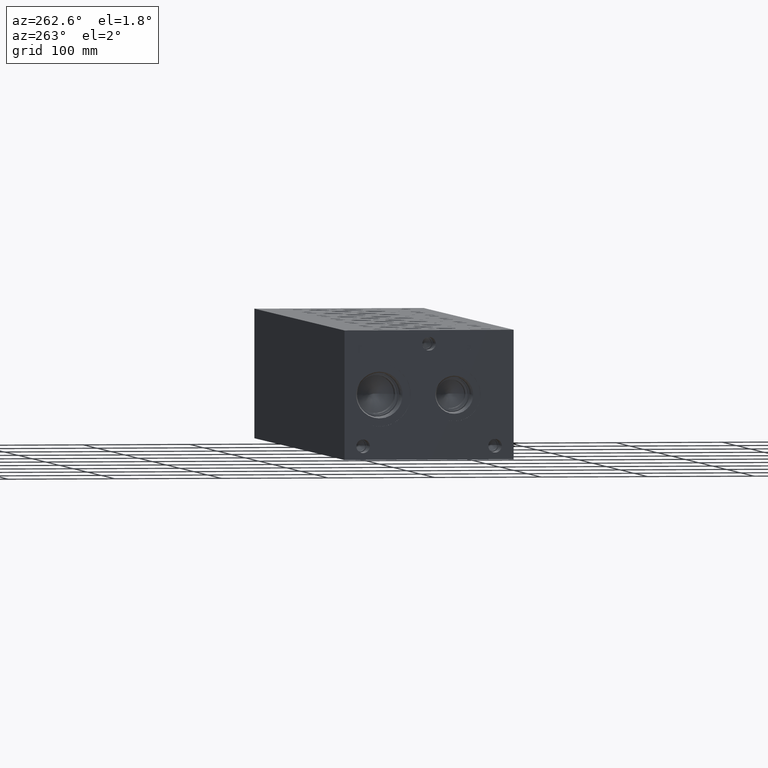
[diagram: clean part render]
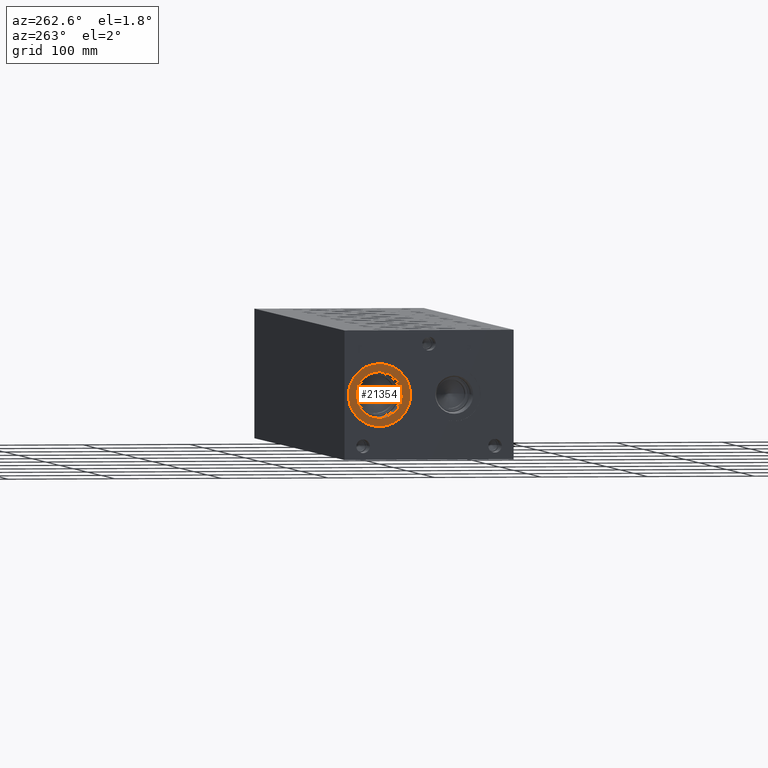
[diagram: same view with one face highlighted and labeled with its STEP entity id]
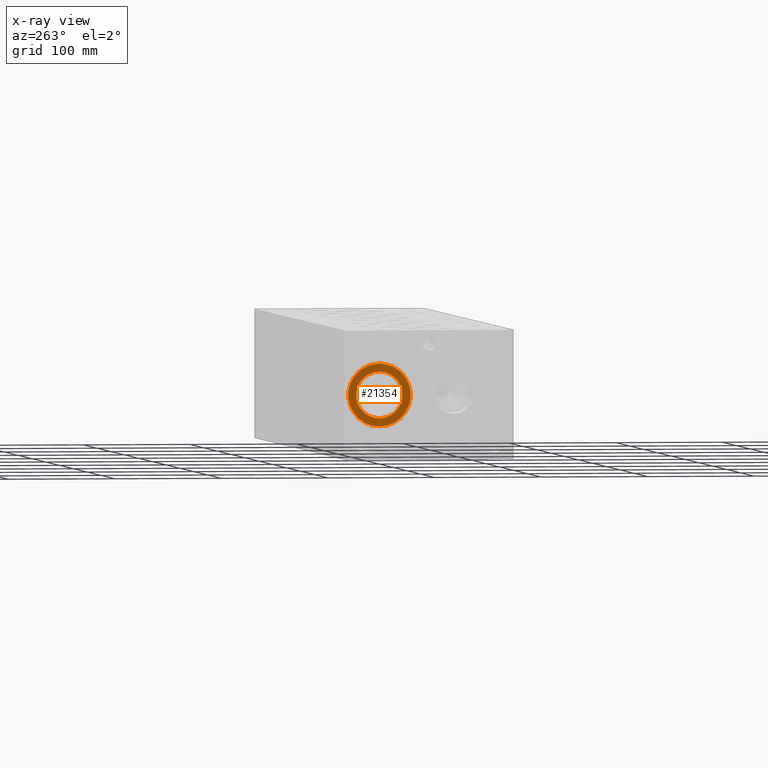
[diagram: x-ray of the same camera — body ghosted, the highlighted face saturated]
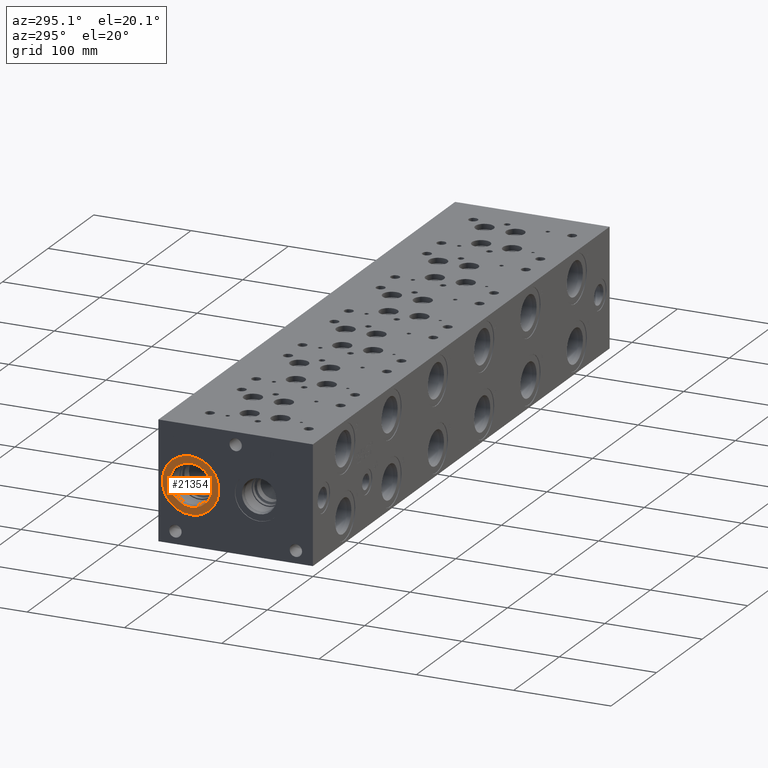
[diagram: same view with one face highlighted and labeled with its STEP entity id]
A machine part, auxiliary view. The second image highlights one B-rep face of the part: STEP entity #21354.
The next image is the same camera in x-ray: the body ghosted, the highlighted face saturated — about 0% of this face is hidden behind the body in this view.
A second angle (auxiliary view) of the same face is appended — the face is thin or edge-on in the first view.
In plain terms, the highlighted planar face has unit normal (1, 0, 0).
Its self-contained STEP definition (entity closure, byte-faithful):
#540=CIRCLE('',#22437,29.2862);
#541=CIRCLE('',#22438,29.2862);
#542=CIRCLE('',#22440,21.7551);
#543=CIRCLE('',#22441,21.7551);
#1380=FACE_BOUND('',#4079,.T.);
#2819=FACE_OUTER_BOUND('',#4078,.T.);
#4078=EDGE_LOOP('',(#17183,#17184));
#4079=EDGE_LOOP('',(#17185,#17186));
#9560=VERTEX_POINT('',#35502);
#9561=VERTEX_POINT('',#35504);
#9562=VERTEX_POINT('',#35508);
#9563=VERTEX_POINT('',#35509);
#12305=EDGE_CURVE('',#9560,#9561,#540,.T.);
#12306=EDGE_CURVE('',#9561,#9560,#541,.T.);
#12307=EDGE_CURVE('',#9562,#9563,#542,.T.);
#12308=EDGE_CURVE('',#9563,#9562,#543,.T.);
#17183=ORIENTED_EDGE('',*,*,#12306,.F.);
#17184=ORIENTED_EDGE('',*,*,#12305,.F.);
#17185=ORIENTED_EDGE('',*,*,#12307,.T.);
#17186=ORIENTED_EDGE('',*,*,#12308,.T.);
#19953=PLANE('',#22439);
#21354=ADVANCED_FACE('',(#2819,#1380),#19953,.F.);
#22437=AXIS2_PLACEMENT_3D('',#35505,#26263,#26264);
#22438=AXIS2_PLACEMENT_3D('',#35506,#26265,#26266);
#22439=AXIS2_PLACEMENT_3D('',#35507,#26267,#26268);
#22440=AXIS2_PLACEMENT_3D('',#35510,#26269,#26270);
#22441=AXIS2_PLACEMENT_3D('',#35511,#26271,#26272);
#26263=DIRECTION('center_axis',(1.,0.,0.));
#26264=DIRECTION('ref_axis',(0.,0.,-1.));
#26265=DIRECTION('center_axis',(1.,0.,0.));
#26266=DIRECTION('ref_axis',(0.,0.,-1.));
#26267=DIRECTION('center_axis',(1.,0.,0.));
#26268=DIRECTION('ref_axis',(0.,0.,-1.));
#26269=DIRECTION('center_axis',(1.,0.,0.));
#26270=DIRECTION('ref_axis',(0.,0.,-1.));
#26271=DIRECTION('center_axis',(1.,0.,0.));
#26272=DIRECTION('ref_axis',(0.,0.,-1.));
#35502=CARTESIAN_POINT('',(0.7874,125.8316,31.0388));
#35504=CARTESIAN_POINT('',(0.7874,125.8316,89.6112));
#35505=CARTESIAN_POINT('Origin',(0.7874,125.8316,60.325));
#35506=CARTESIAN_POINT('Origin',(0.7874,125.8316,60.325));
#35507=CARTESIAN_POINT('Origin',(0.7874,125.8316,82.0801));
#35508=CARTESIAN_POINT('',(0.7874,125.8316,82.0801));
#35509=CARTESIAN_POINT('',(0.7874,125.8316,38.5699));
#35510=CARTESIAN_POINT('Origin',(0.7874,125.8316,60.325));
#35511=CARTESIAN_POINT('Origin',(0.7874,125.8316,60.325));